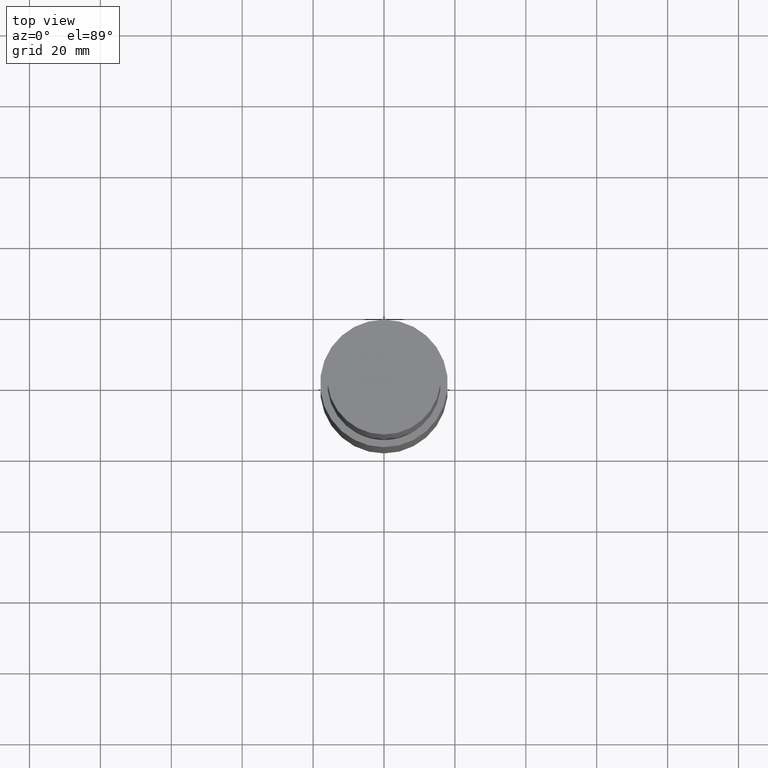
[diagram: clean part render]
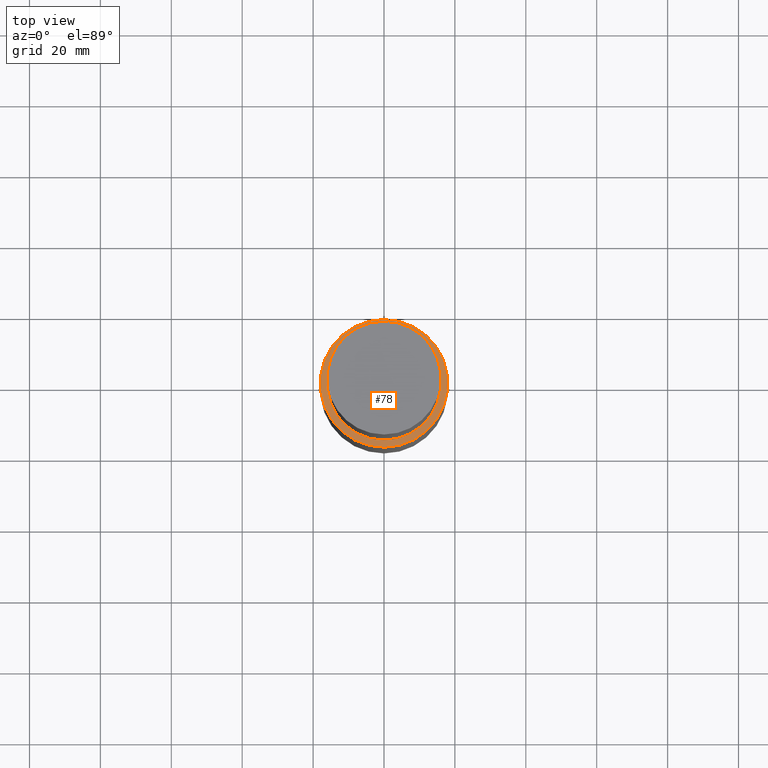
[diagram: same view with one face highlighted and labeled with its STEP entity id]
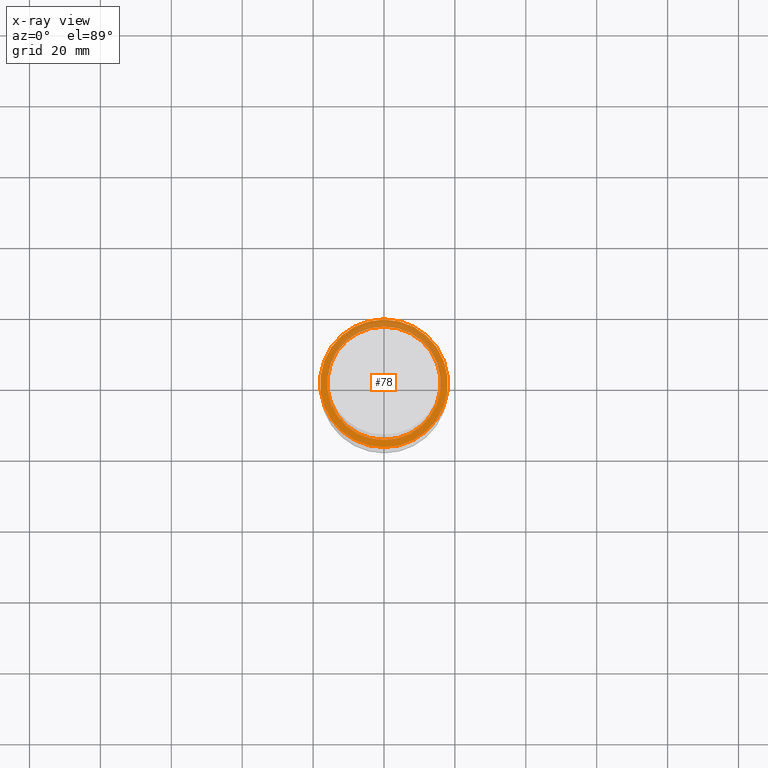
[diagram: x-ray of the same camera — body ghosted, the highlighted face saturated]
A machine part, top view. The second image highlights one B-rep face of the part: STEP entity #78.
The next image is the same camera in x-ray: the body ghosted, the highlighted face saturated — about 24% of this face is hidden behind the body in this view.
In plain terms, the highlighted planar face has unit normal (-0, 0, 1).
Its self-contained STEP definition (entity closure, byte-faithful):
#78=ADVANCED_FACE('',(#90,#91),#92,.T.);
#90=FACE_BOUND('',#106,.T.);
#91=FACE_OUTER_BOUND('',#107,.T.);
#92=PLANE('',#108);
#106=EDGE_LOOP('',(#128));
#107=EDGE_LOOP('',(#129));
#108=AXIS2_PLACEMENT_3D('',#130,#131,#132);
#128=ORIENTED_EDGE('',*,*,#145,.F.);
#129=ORIENTED_EDGE('',*,*,#144,.T.);
#130=CARTESIAN_POINT('',(-6.73555739531054E-015,17.0000000002145,110.000000000002));
#131=DIRECTION('',(-6.12323399573677E-017,2.98305484403591E-013,1.0));
#132=DIRECTION('',(1.82611156794172E-029,1.0,-2.98305484403591E-013));
#144=EDGE_CURVE('',#151,#151,#152,.T.);
#145=EDGE_CURVE('',#153,#153,#154,.T.);
#151=VERTEX_POINT('',#161);
#152=CIRCLE('',#162,17.9999999999992);
#153=VERTEX_POINT('',#163);
#154=CIRCLE('',#164,16.0000000004299);
#161=CARTESIAN_POINT('',(-6.73555739531052E-015,17.9999999999992,110.000000000001));
#162=AXIS2_PLACEMENT_3D('',#173,#174,#175);
#163=CARTESIAN_POINT('',(-6.73555739531056E-015,16.0000000004299,110.000000000002));
#164=AXIS2_PLACEMENT_3D('',#176,#177,#178);
#173=CARTESIAN_POINT('',(-6.73555739531052E-015,1.99423174403271E-015,110.000000000001));
#174=DIRECTION('',(-6.12323399573677E-017,1.81293794912064E-017,1.0));
#175=DIRECTION('',(-3.71704840254734E-033,1.0,-1.81293794912064E-017));
#176=CARTESIAN_POINT('',(-6.73555739531056E-015,1.99423174403276E-015,110.000000000002));
#177=DIRECTION('',(-6.12323399573676E-017,1.81293794912064E-017,1.0));
#178=DIRECTION('',(-3.71704840254734E-033,1.0,-1.81293794912064E-017));